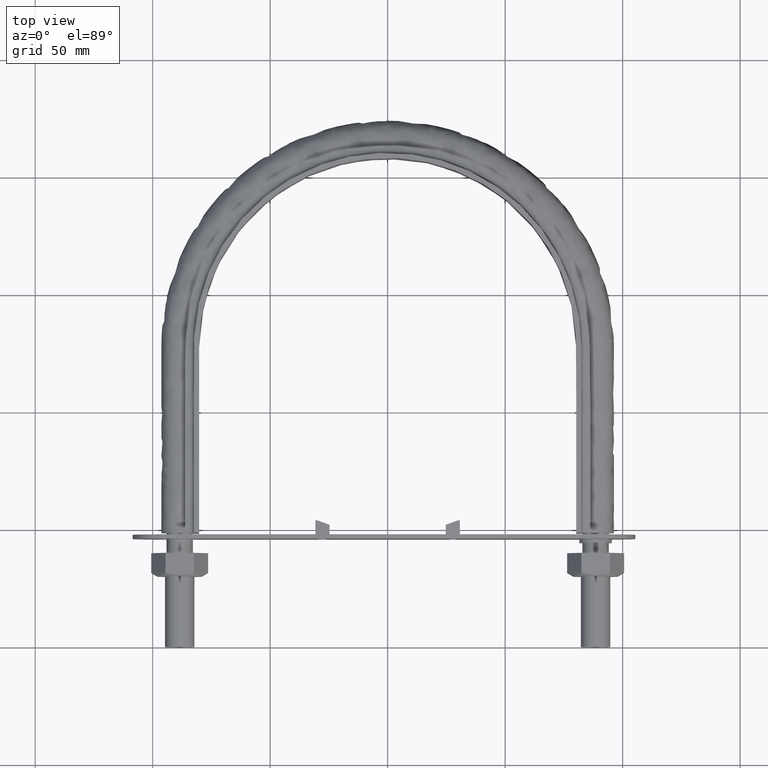
[diagram: clean part render]
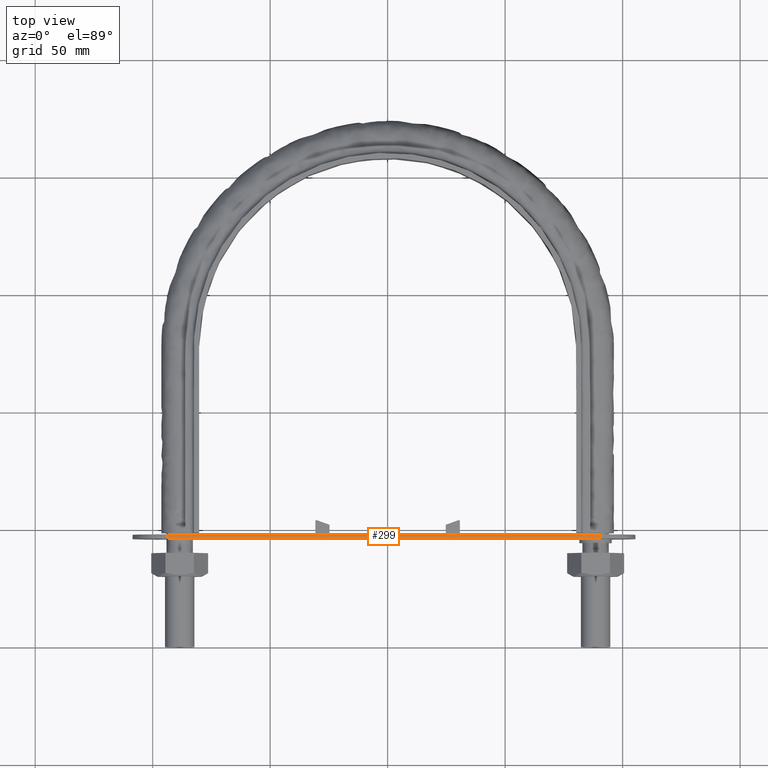
[diagram: same view with one face highlighted and labeled with its STEP entity id]
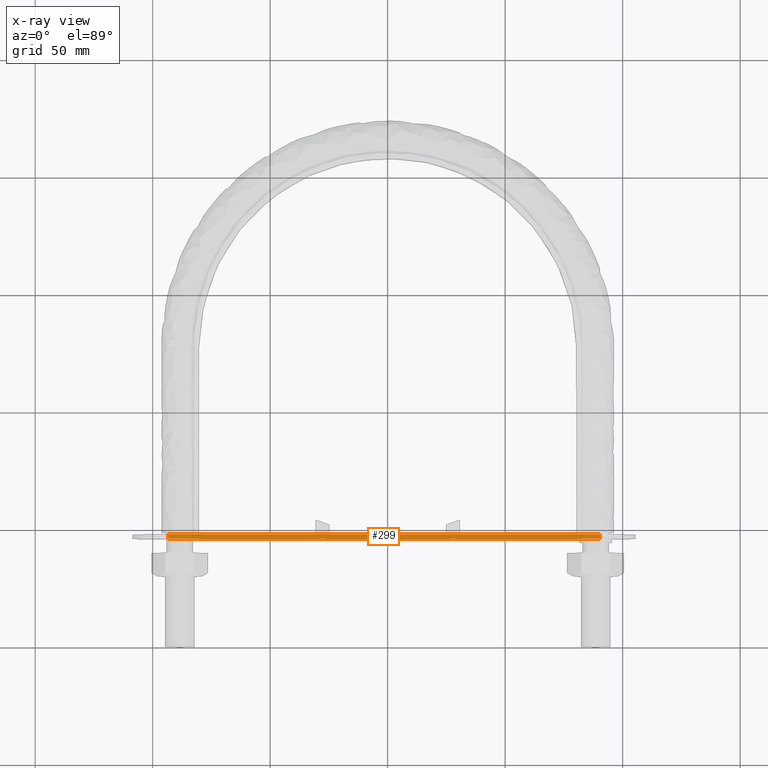
[diagram: x-ray of the same camera — body ghosted, the highlighted face saturated]
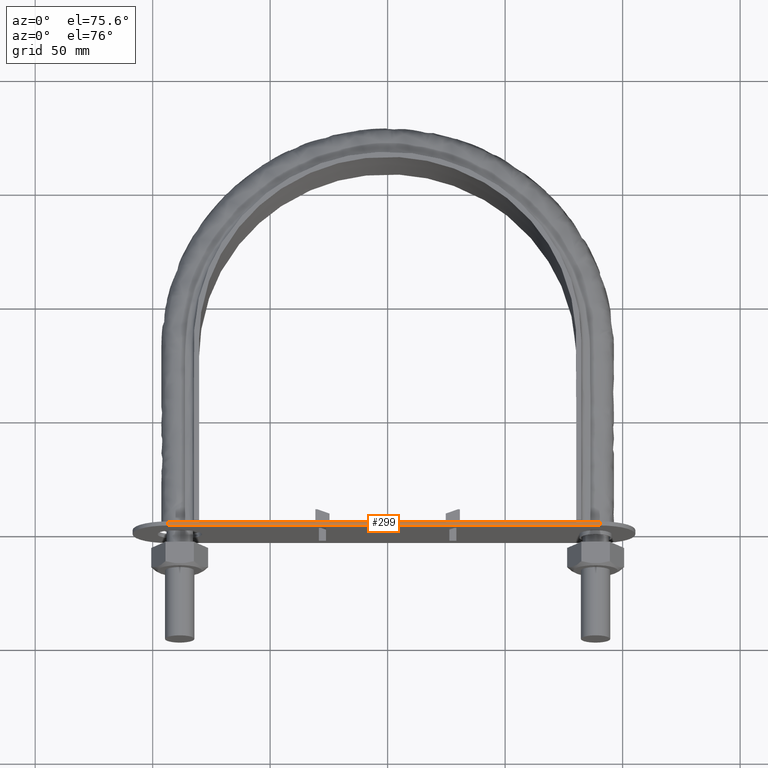
[diagram: same view with one face highlighted and labeled with its STEP entity id]
A machine part, top view. The second image highlights one B-rep face of the part: STEP entity #299.
The next image is the same camera in x-ray: the body ghosted, the highlighted face saturated — about 0% of this face is hidden behind the body in this view.
A second angle (auxiliary view) of the same face is appended — the face is thin or edge-on in the first view.
In plain terms, the highlighted planar face has unit normal (-0, 0, 1).
Its self-contained STEP definition (entity closure, byte-faithful):
#299 = ADVANCED_FACE( '', ( #428 ), #429, .T. );
#428 = FACE_OUTER_BOUND( '', #1525, .T. );
#429 = PLANE( '', #1526 );
#1525 = EDGE_LOOP( '', ( #1886, #1887, #1888, #1889 ) );
#1526 = AXIS2_PLACEMENT_3D( '', #1890, #1891, #1892 );
#1886 = ORIENTED_EDGE( '', *, *, #2255, .F. );
#1887 = ORIENTED_EDGE( '', *, *, #2240, .F. );
#1888 = ORIENTED_EDGE( '', *, *, #2228, .T. );
#1889 = ORIENTED_EDGE( '', *, *, #2277, .T. );
#1890 = CARTESIAN_POINT( '', ( -93.5500000002480, 46.0000000000055, 14.9999999984541 ) );
#1891 = DIRECTION( '', ( -1.65318418676751E-011, 3.46365185065230E-013, 1.00000000000000 ) );
#1892 = DIRECTION( '', ( -1.00000000000000, 1.83421523212154E-016, -1.65318418676751E-011 ) );
#2228 = EDGE_CURVE( '', #2402, #2410, #2412, .T. );
#2240 = EDGE_CURVE( '', #2402, #2432, #2435, .T. );
#2255 = EDGE_CURVE( '', #2432, #2460, #2461, .T. );
#2277 = EDGE_CURVE( '', #2410, #2460, #2496, .T. );
#2402 = VERTEX_POINT( '', #2868 );
#2410 = VERTEX_POINT( '', #2877 );
#2412 = LINE( '', #2879, #2880 );
#2432 = VERTEX_POINT( '', #2906 );
#2435 = LINE( '', #2910, #2911 );
#2460 = VERTEX_POINT( '', #2950 );
#2461 = LINE( '', #2951, #2952 );
#2496 = LINE( '', #3001, #3002 );
#2868 = CARTESIAN_POINT( '', ( -93.5500000002480, 46.0000000000055, 14.9999999984541 ) );
#2877 = CARTESIAN_POINT( '', ( 90.4499999997520, 46.0000000000054, 15.0000000014960 ) );
#2879 = CARTESIAN_POINT( '', ( -93.5500000002480, 46.0000000000055, 14.9999999984541 ) );
#2880 = VECTOR( '', #3346, 1000.00000000000 );
#2906 = CARTESIAN_POINT( '', ( -93.5500000002480, 47.8000000000055, 14.9999999984535 ) );
#2910 = CARTESIAN_POINT( '', ( -93.5500000002480, 46.0000000000055, 14.9999999984541 ) );
#2911 = VECTOR( '', #3366, 1000.00000000000 );
#2950 = CARTESIAN_POINT( '', ( 90.4499999997520, 47.8000000000054, 15.0000000014953 ) );
#2951 = CARTESIAN_POINT( '', ( -93.5500000002480, 47.8000000000055, 14.9999999984535 ) );
#2952 = VECTOR( '', #3381, 1000.00000000000 );
#3001 = CARTESIAN_POINT( '', ( 90.4499999997520, 46.0000000000054, 15.0000000014960 ) );
#3002 = VECTOR( '', #3417, 1000.00000000000 );
#3346 = DIRECTION( '', ( 1.00000000000000, -1.83421523212154E-016, 1.65318418676751E-011 ) );
#3366 = DIRECTION( '', ( 1.83421528938208E-016, 1.00000000000000, -3.46365185065227E-013 ) );
#3381 = DIRECTION( '', ( 1.00000000000000, -1.83421523212154E-016, 1.65318418676751E-011 ) );
#3417 = DIRECTION( '', ( 1.83421528938208E-016, 1.00000000000000, -3.46365185065227E-013 ) );